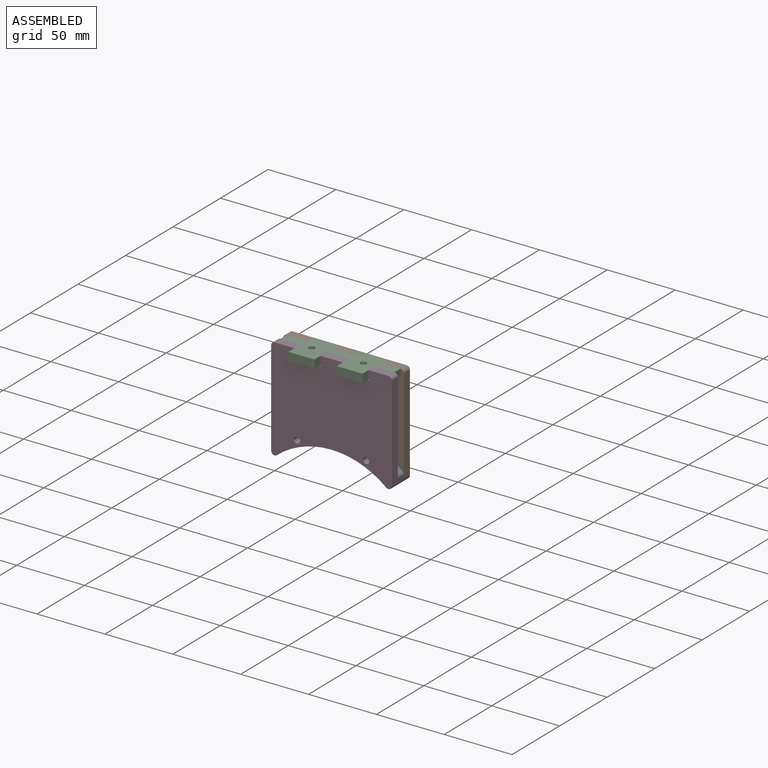
[diagram: assembled view]
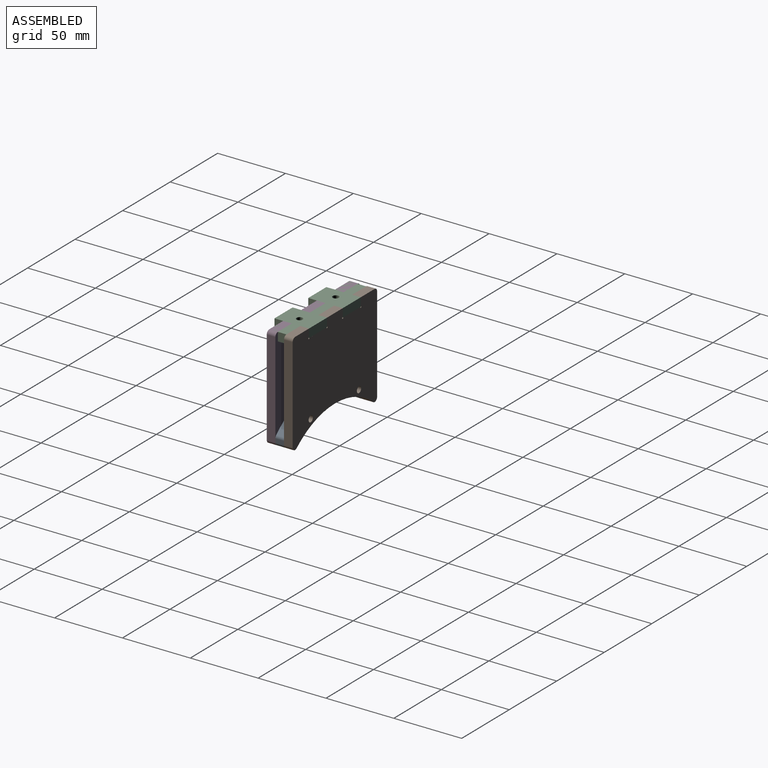
[diagram: assembled view, second angle]
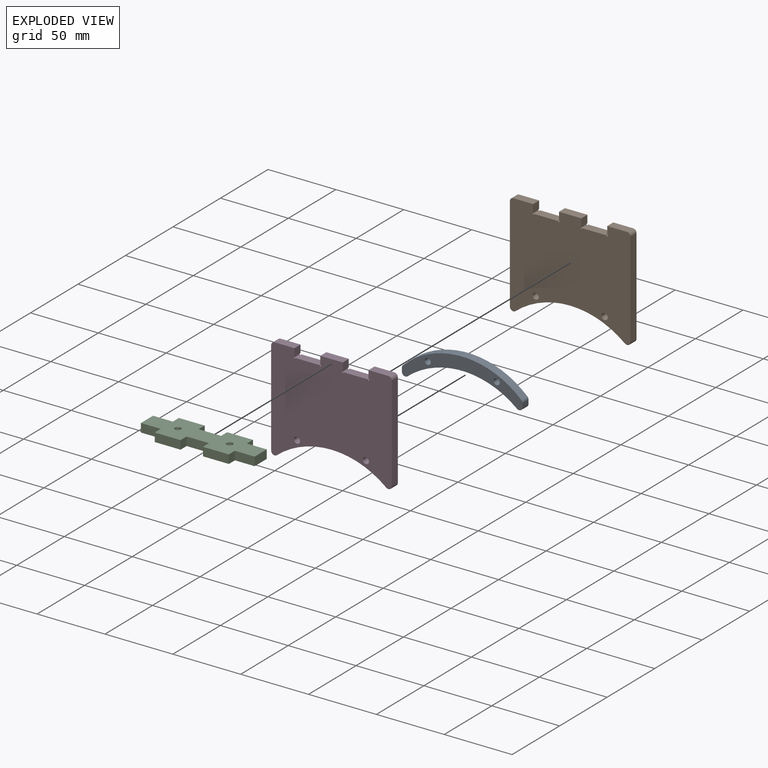
[diagram: exploded view]
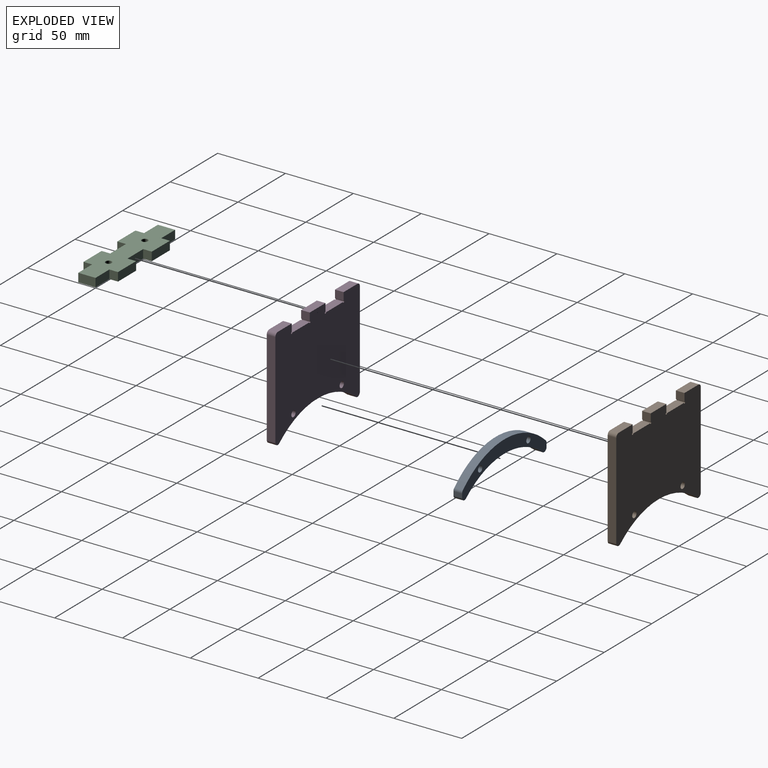
[diagram: exploded view, second angle]
ASSEMBLY  parts=4 mates=5
PART A: 12 faces, bbox 88.9x6.4x24.5 mm
  f0: plane 6.35x2.76mm, normal (1,0,0), area 17.5mm2, adj f4,f5,f8,f11
  f1: cylinder r=63.5mm len=87.31mm, axis (0,1,0), area 611.3mm2, adj f4,f5,f8,f9
  f2: plane 6.35x2.76mm, normal (-1,0,0), area 17.5mm2, adj f4,f5,f9,f10
  f3: cylinder r=63.5mm len=80.6mm, axis (0,1,0), area 554.4mm2, adj f4,f5,f10,f11
  f4: plane 88.9x24.53mm, normal (0,-1,0), area 801.1mm2, adj f0,f1,f2,f3,f6,f7,f8,f9
  f5: plane 88.9x24.53mm, normal (0,1,0), area 801.1mm2, adj f0,f1,f2,f3,f6,f7,f8,f9
  f6: cylinder r=2.25mm len=6.35mm, axis (0,1,0), area 89.7mm2, adj f4,f5
  f7: cylinder r=2.25mm len=6.35mm, axis (0,1,0), area 89.7mm2, adj f4,f5
  f8: cylinder r=2.54mm len=6.35mm, axis (0,1,0), area 13.1mm2, adj f0,f1,f4,f5
  f9: cylinder r=2.54mm len=6.35mm, axis (0,1,0), area 13.1mm2, adj f1,f2,f4,f5
  f10: cylinder r=2.54mm len=6.35mm, axis (0,1,0), area 36.4mm2, adj f2,f3,f4,f5
  f11: cylinder r=2.54mm len=6.35mm, axis (0,1,0), area 36.4mm2, adj f0,f3,f4,f5
PART B: 24 faces, bbox 88.9x6.4x75.3 mm
  f0: plane 17.78x6.35mm, normal (0,0,1), area 112.9mm2, adj f1,f15,f16,f17
  f1: cylinder r=0.64mm len=6.35mm, axis (0,1,0), area 19mm2, adj f0,f2,f16,f17
  f2: plane 6.35x5.72mm, normal (1,0,0), area 36.3mm2, adj f1,f3,f16,f17
  f3: plane 16.51x6.35mm, normal (0,0,1), area 104.8mm2, adj f2,f4,f16,f17
  f4: plane 6.35x5.72mm, normal (-1,0,0), area 36.3mm2, adj f3,f5,f16,f17
  f5: cylinder r=0.64mm len=6.35mm, axis (0,1,0), area 19mm2, adj f4,f6,f16,f17
  f6: plane 17.78x6.35mm, normal (0,0,1), area 112.9mm2, adj f5,f7,f16,f17
  f7: cylinder r=0.64mm len=6.35mm, axis (0,1,0), area 19mm2, adj f6,f8,f16,f17
  f8: plane 6.35x5.72mm, normal (1,0,0), area 36.3mm2, adj f7,f9,f16,f17
  f9: plane 14.61x6.35mm, normal (0,0,1), area 92.7mm2, adj f8,f16,f17,f20
  f10: plane 70.25x6.35mm, normal (-1,0,0), area 446.1mm2, adj f16,f17,f20,f21
  f11: cylinder r=63.5mm len=80.6mm, axis (0,1,0), area 554.4mm2, adj f16,f17,f21,f22
  f12: plane 70.25x6.35mm, normal (1,0,0), area 446.1mm2, adj f16,f17,f22,f23
  f13: plane 14.61x6.35mm, normal (0,0,1), area 92.7mm2, adj f14,f16,f17,f23
  f14: plane 6.35x5.72mm, normal (-1,0,0), area 36.3mm2, adj f13,f15,f16,f17
  f15: cylinder r=0.64mm len=6.35mm, axis (0,1,0), area 19mm2, adj f0,f14,f16,f17
  f16: plane 88.9x75.33mm, normal (0,-1,0), area 5571.9mm2, adj f0,f1,f2,f3,f4,f5,f6,f7
  f17: plane 88.9x75.33mm, normal (0,1,0), area 5571.9mm2, adj f0,f1,f2,f3,f4,f5,f6,f7
  f18: cylinder r=2.25mm len=6.35mm, axis (0,-1,0), area 89.7mm2, adj f16,f17
  f19: cylinder r=2.25mm len=6.35mm, axis (0,-1,0), area 89.7mm2, adj f16,f17
  f20: cylinder r=2.54mm len=6.35mm, axis (0,1,0), area 25.3mm2, adj f9,f10,f16,f17
  f21: cylinder r=2.54mm len=6.35mm, axis (0,1,0), area 36.4mm2, adj f10,f11,f16,f17
  f22: cylinder r=2.54mm len=6.35mm, axis (0,1,0), area 36.4mm2, adj f11,f12,f16,f17
  f23: cylinder r=2.54mm len=6.35mm, axis (0,1,0), area 25.3mm2, adj f12,f13,f16,f17
PART C: 24 faces, bbox 83.8x25.4x6.4 mm
  f0: plane 6.35x6.35mm, normal (-1,0,0), area 40.3mm2, adj f1,f10,f11,f12
  f1: plane 14.61x6.35mm, normal (0,1,0), area 92.7mm2, adj f0,f2,f11,f12
  f2: plane 12.7x6.35mm, normal (-1,0,0), area 80.6mm2, adj f1,f11,f12,f14
  f3: plane 12.7x6.35mm, normal (1,0,0), area 80.6mm2, adj f4,f11,f12,f15
  f4: plane 14.61x6.35mm, normal (0,1,0), area 92.7mm2, adj f3,f5,f11,f12
  f5: plane 6.35x6.35mm, normal (1,0,0), area 40.3mm2, adj f4,f6,f11,f12
  f6: plane 19.05x6.35mm, normal (0,1,0), area 121mm2, adj f5,f7,f11,f12
  f7: plane 6.35x6.35mm, normal (-1,0,0), area 40.3mm2, adj f6,f8,f11,f12
  f8: plane 16.51x6.35mm, normal (0,1,0), area 104.8mm2, adj f7,f9,f11,f12
  f9: plane 6.35x6.35mm, normal (1,0,0), area 40.3mm2, adj f8,f10,f11,f12
  f10: plane 19.05x6.35mm, normal (0,1,0), area 121mm2, adj f0,f9,f11,f12
  f11: plane 83.82x25.4mm, normal (0,0,-1), area 1516.6mm2, adj f0,f1,f2,f3,f4,f5,f6,f7
  f12: plane 83.82x25.4mm, normal (0,0,1), area 1516.6mm2, adj f0,f1,f2,f3,f4,f5,f6,f7
  f13: plane 6.35x6.35mm, normal (-1,0,0), area 40.3mm2, adj f11,f12,f14,f21
  f14: plane 14.61x6.35mm, normal (0,-1,0), area 92.7mm2, adj f2,f11,f12,f13
  f15: plane 14.61x6.35mm, normal (0,-1,0), area 92.7mm2, adj f3,f11,f12,f16
  f16: plane 6.35x6.35mm, normal (1,0,0), area 40.3mm2, adj f11,f12,f15,f17
  f17: plane 19.05x6.35mm, normal (0,-1,0), area 121mm2, adj f11,f12,f16,f18
  f18: plane 6.35x6.35mm, normal (-1,0,0), area 40.3mm2, adj f11,f12,f17,f19
  f19: plane 16.51x6.35mm, normal (0,-1,0), area 104.8mm2, adj f11,f12,f18,f20
  f20: plane 6.35x6.35mm, normal (1,0,0), area 40.3mm2, adj f11,f12,f19,f21
  f21: plane 19.05x6.35mm, normal (0,-1,0), area 121mm2, adj f11,f12,f13,f20
  f22: cylinder r=2.25mm len=6.35mm, axis (0,0,1), area 89.7mm2, adj f11,f12
  f23: cylinder r=2.25mm len=6.35mm, axis (0,0,1), area 89.7mm2, adj f11,f12
PART D: same geometry as B
PLACE A t=(-18.34,-16.35,2.94)mm
PLACE B t=(-18.34,-16.35,2.94)mm fixed
PLACE C rot(axis=(0,0,1),180deg) t=(-18.34,-41.75,2.94)mm
PLACE D t=(-18.34,-29.05,2.94)mm
MATE fastened C.f19 <-> B.f16  axis (0,1,0) through (-18.34,-22.7,2.94)mm
MATE revolute D.f19 <-> A.f7  axis (0,1,0) through (-43.74,-29.05,-57.93)mm
MATE revolute A.f7 <-> B.f19  axis (0,1,0) through (-43.74,-22.7,-57.93)mm
MATE revolute B.f18 <-> A.f6  axis (0,-1,0) through (7.06,-22.7,-57.93)mm
MATE revolute A.f6 <-> D.f18  axis (0,1,0) through (7.06,-29.05,-57.93)mm
